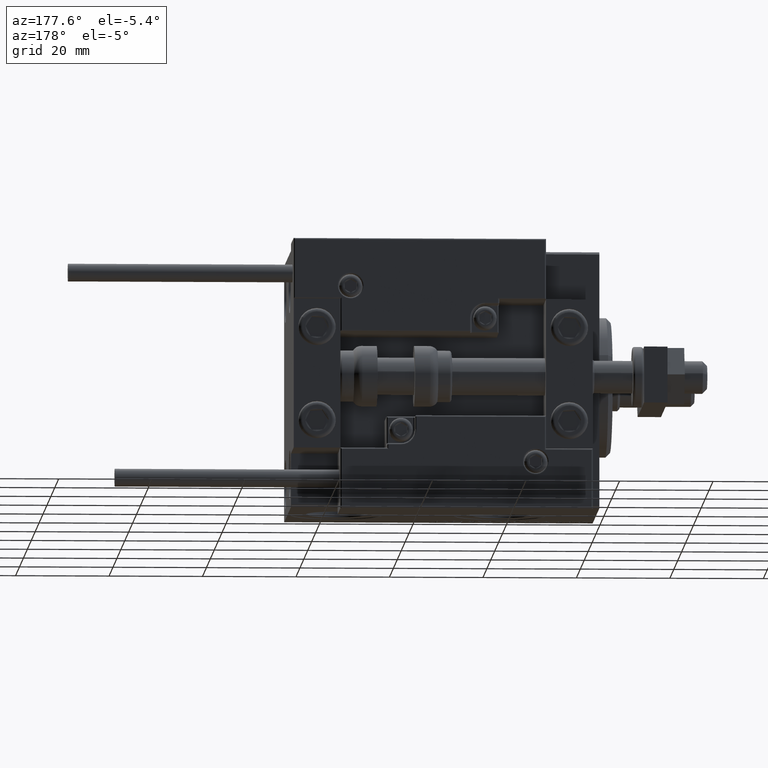
[diagram: clean part render]
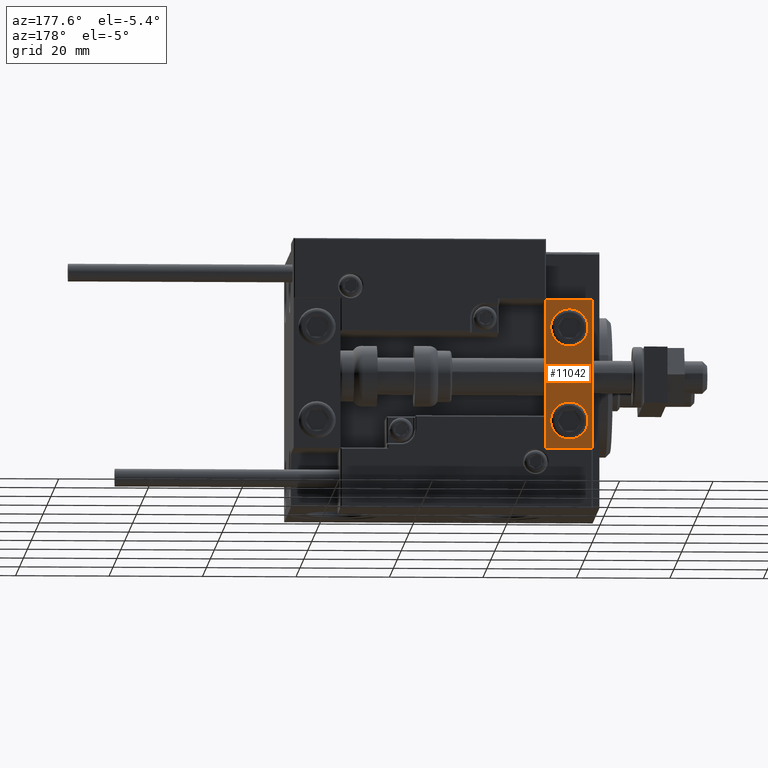
[diagram: same view with one face highlighted and labeled with its STEP entity id]
A machine part, auxiliary view. The second image highlights one B-rep face of the part: STEP entity #11042.
In plain terms, the highlighted planar face has unit normal (-0, 1, -0).
Its self-contained STEP definition (entity closure, byte-faithful):
#569 = CARTESIAN_POINT ( 'NONE',  ( 5.000000000000000888, 6.999999999999999112, -6.000000000000000888 ) ) ;
#1693 = CARTESIAN_POINT ( 'NONE',  ( 10.00000000000000000, 7.000000000000000000, -16.00000000000000711 ) ) ;
#1830 = ORIENTED_EDGE ( 'NONE', *, *, #40608, .T. ) ;
#2967 = VERTEX_POINT ( 'NONE', #18484 ) ;
#4190 = EDGE_CURVE ( 'NONE', #2967, #10853, #24127, .T. ) ;
#5726 = VERTEX_POINT ( 'NONE', #37413 ) ;
#5781 = VERTEX_POINT ( 'NONE', #14274 ) ;
#6025 = FACE_BOUND ( 'NONE', #20654, .T. ) ;
#6292 = FACE_OUTER_BOUND ( 'NONE', #11029, .T. ) ;
#6321 = DIRECTION ( 'NONE',  ( -1.000000000000000000, -0.000000000000000000, -0.000000000000000000 ) ) ;
#6522 = EDGE_LOOP ( 'NONE', ( #31578, #13753 ) ) ;
#8595 = DIRECTION ( 'NONE',  ( 1.848892746611746419E-32, -1.000000000000000000, 6.616381192988677562E-17 ) ) ;
#9639 = DIRECTION ( 'NONE',  ( 0.000000000000000000, -0.000000000000000000, 1.000000000000000000 ) ) ;
#10853 = VERTEX_POINT ( 'NONE', #38714 ) ;
#11029 = EDGE_LOOP ( 'NONE', ( #12337, #32621, #38734, #45784 ) ) ;
#11042 = ADVANCED_FACE ( 'NONE', ( #6292, #33534, #6025 ), #37879, .T. ) ;
#12337 = ORIENTED_EDGE ( 'NONE', *, *, #41250, .F. ) ;
#13358 = EDGE_CURVE ( 'NONE', #18894, #23108, #44018, .T. ) ;
#13516 = DIRECTION ( 'NONE',  ( -1.000000000000000000, -0.000000000000000000, -0.000000000000000000 ) ) ;
#13753 = ORIENTED_EDGE ( 'NONE', *, *, #27898, .F. ) ;
#13850 = DIRECTION ( 'NONE',  ( 0.000000000000000000, 0.000000000000000000, 1.000000000000000000 ) ) ;
#14274 = CARTESIAN_POINT ( 'NONE',  ( 5.000000000000000888, 7.000000000000000888, 14.00000000000000178 ) ) ;
#14352 = CARTESIAN_POINT ( 'NONE',  ( 5.000000000000000888, 6.999999999999999112, -10.00000000000000178 ) ) ;
#14651 = EDGE_CURVE ( 'NONE', #2967, #5726, #37141, .T. ) ;
#15092 = DIRECTION ( 'NONE',  ( 0.000000000000000000, 0.000000000000000000, 1.000000000000000000 ) ) ;
#17584 = AXIS2_PLACEMENT_3D ( 'NONE', #27176, #42857, #15092 ) ;
#18484 = CARTESIAN_POINT ( 'NONE',  ( 10.00000000000000000, 7.000000000000000000, 15.99999999999999289 ) ) ;
#18894 = VERTEX_POINT ( 'NONE', #569 ) ;
#19699 = VECTOR ( 'NONE', #20261, 1000.000000000000000 ) ;
#19831 = CARTESIAN_POINT ( 'NONE',  ( 5.000000000000000888, 6.999999999999999112, -10.00000000000000178 ) ) ;
#20261 = DIRECTION ( 'NONE',  ( 0.000000000000000000, 0.000000000000000000, -1.000000000000000000 ) ) ;
#20654 = EDGE_LOOP ( 'NONE', ( #21571, #1830 ) ) ;
#21059 = LINE ( 'NONE', #49319, #30750 ) ;
#21571 = ORIENTED_EDGE ( 'NONE', *, *, #34246, .T. ) ;
#22564 = VECTOR ( 'NONE', #6321, 1000.000000000000000 ) ;
#22706 = DIRECTION ( 'NONE',  ( 0.000000000000000000, 0.000000000000000000, 1.000000000000000000 ) ) ;
#23108 = VERTEX_POINT ( 'NONE', #36549 ) ;
#23336 = CIRCLE ( 'NONE', #17584, 4.000000000000000000 ) ;
#24127 = LINE ( 'NONE', #39779, #19699 ) ;
#24543 = DIRECTION ( 'NONE',  ( 0.000000000000000000, 0.000000000000000000, 1.000000000000000000 ) ) ;
#25731 = CARTESIAN_POINT ( 'NONE',  ( 0.000000000000000000, 7.000000000000000000, -16.00000000000000711 ) ) ;
#26829 = AXIS2_PLACEMENT_3D ( 'NONE', #19831, #35499, #22706 ) ;
#27176 = CARTESIAN_POINT ( 'NONE',  ( 5.000000000000000888, 7.000000000000000888, 10.00000000000000178 ) ) ;
#27898 = EDGE_CURVE ( 'NONE', #23108, #18894, #48675, .T. ) ;
#28873 = VERTEX_POINT ( 'NONE', #25731 ) ;
#29274 = DIRECTION ( 'NONE',  ( 0.000000000000000000, 0.000000000000000000, -1.000000000000000000 ) ) ;
#29276 = DIRECTION ( 'NONE',  ( 0.000000000000000000, 1.000000000000000000, -6.065466699219605527E-17 ) ) ;
#30715 = CIRCLE ( 'NONE', #33169, 4.000000000000000000 ) ;
#30750 = VECTOR ( 'NONE', #29274, 1000.000000000000000 ) ;
#31578 = ORIENTED_EDGE ( 'NONE', *, *, #13358, .F. ) ;
#32621 = ORIENTED_EDGE ( 'NONE', *, *, #14651, .F. ) ;
#33017 = CARTESIAN_POINT ( 'NONE',  ( 10.00000000000000000, 7.000000000000000000, 15.99999999999999289 ) ) ;
#33076 = AXIS2_PLACEMENT_3D ( 'NONE', #14352, #29276, #13850 ) ;
#33169 = AXIS2_PLACEMENT_3D ( 'NONE', #44050, #8595, #24543 ) ;
#33534 = FACE_BOUND ( 'NONE', #6522, .T. ) ;
#34246 = EDGE_CURVE ( 'NONE', #5781, #39057, #23336, .T. ) ;
#34378 = EDGE_CURVE ( 'NONE', #10853, #28873, #36910, .T. ) ;
#35499 = DIRECTION ( 'NONE',  ( 0.000000000000000000, 1.000000000000000000, -6.065466699219605527E-17 ) ) ;
#36549 = CARTESIAN_POINT ( 'NONE',  ( 5.000000000000001776, 6.999999999999999112, -14.00000000000000178 ) ) ;
#36910 = LINE ( 'NONE', #1693, #22564 ) ;
#37141 = LINE ( 'NONE', #46331, #45751 ) ;
#37413 = CARTESIAN_POINT ( 'NONE',  ( 0.000000000000000000, 7.000000000000000000, 15.99999999999999289 ) ) ;
#37879 = PLANE ( 'NONE',  #44580 ) ;
#38714 = CARTESIAN_POINT ( 'NONE',  ( 10.00000000000000000, 7.000000000000000000, -16.00000000000000711 ) ) ;
#38734 = ORIENTED_EDGE ( 'NONE', *, *, #4190, .T. ) ;
#39057 = VERTEX_POINT ( 'NONE', #46815 ) ;
#39779 = CARTESIAN_POINT ( 'NONE',  ( 10.00000000000000000, 7.000000000000000000, 15.99999999999999289 ) ) ;
#40608 = EDGE_CURVE ( 'NONE', #39057, #5781, #30715, .T. ) ;
#41250 = EDGE_CURVE ( 'NONE', #5726, #28873, #21059, .T. ) ;
#42857 = DIRECTION ( 'NONE',  ( 1.848892746611746419E-32, -1.000000000000000000, 6.616381192988677562E-17 ) ) ;
#44018 = CIRCLE ( 'NONE', #26829, 4.000000000000000888 ) ;
#44050 = CARTESIAN_POINT ( 'NONE',  ( 5.000000000000000888, 7.000000000000000888, 10.00000000000000178 ) ) ;
#44580 = AXIS2_PLACEMENT_3D ( 'NONE', #33017, #49218, #9639 ) ;
#45751 = VECTOR ( 'NONE', #13516, 1000.000000000000000 ) ;
#45784 = ORIENTED_EDGE ( 'NONE', *, *, #34378, .T. ) ;
#46331 = CARTESIAN_POINT ( 'NONE',  ( 10.00000000000000000, 7.000000000000000000, 15.99999999999999289 ) ) ;
#46815 = CARTESIAN_POINT ( 'NONE',  ( 5.000000000000001776, 7.000000000000000888, 6.000000000000000888 ) ) ;
#48675 = CIRCLE ( 'NONE', #33076, 4.000000000000000888 ) ;
#49218 = DIRECTION ( 'NONE',  ( -0.000000000000000000, 1.000000000000000000, 0.000000000000000000 ) ) ;
#49319 = CARTESIAN_POINT ( 'NONE',  ( 0.000000000000000000, 7.000000000000000000, 15.99999999999999289 ) ) ;